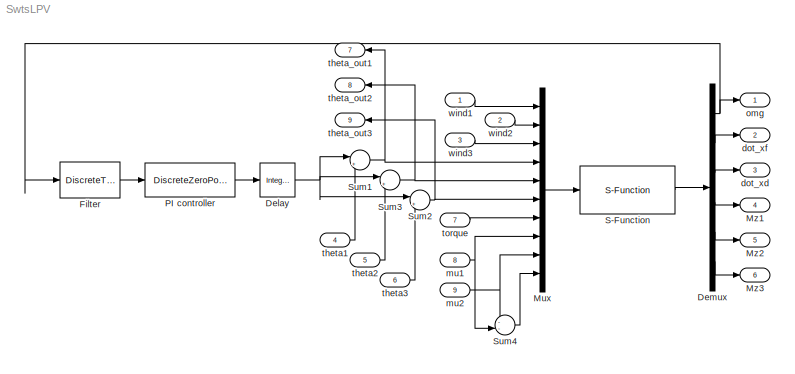
MODEL SwtsLPV
KIND model
BLOCK [Reference] Delay  REF=simulink/Discrete/Integer Delay
  NumDelays = 1
  Ports = [1, 1]
  SID = 10
  SourceBlock = simulink/Discrete/Integer Delay
  SourceType = Integer Delay
  samptime = h
  vinit = 0.0
BLOCK [Demux] Demux
  DisplayOption = bar
  Outputs = 6
  Ports = [1, 6]
  SID = 11
BLOCK [DiscreteTransferFcn] Filter
  Denominator = [1.0000   -3.2569    4.2388   -2.5704    0.6176]
  Numerator = [0.1840   -0.5760    0.8115   -0.5760    0.1840]
  Ports = [1, 1]
  SID = 12
  SampleTime = 0.1
BLOCK [Mux] Mux
  DisplayOption = bar
  Inputs = 10
  Ports = [10, 1]
  SID = 13
BLOCK [Outport] Mz1
  IconDisplay = Port number
  OutDataType = sfix(16)
  OutScaling = 2^0
  Port = 4
  SID = 23
  SampleTime = h
  SamplingMode = Sample based
  SignalType = real
BLOCK [Outport] Mz2
  IconDisplay = Port number
  OutDataType = sfix(16)
  OutScaling = 2^0
  Port = 5
  SID = 24
  SampleTime = h
  SamplingMode = Sample based
  SignalType = real
BLOCK [Outport] Mz3
  IconDisplay = Port number
  OutDataType = sfix(16)
  OutScaling = 2^0
  Port = 6
  SID = 25
  SampleTime = h
  SamplingMode = Sample based
  SignalType = real
BLOCK [DiscreteZeroPole] PI controller
  Gain = 46.9335
  Poles = [1]
  SID = 14
  SampleTime = h
  Zeros = [0.99]
BLOCK [S-Function] S-Function
  EnableBusSupport = off
  FunctionName = SfunctionLPV
  Parameters = M.a,M.b,M.c,M.d
  Ports = [1, 1]
  SID = 15
BLOCK [Sum] Sum1
  IconShape = round
  InputSameDT = off
  Inputs = |++
  OutDataType = sfix(16)
  OutDataTypeMode = Inherit via internal rule
  OutDataTypeStr = Inherit: Inherit via internal rule
  OutScaling = 2^0
  Ports = [2, 1]
  SID = 16
  SaturateOnIntegerOverflow = off
BLOCK [Sum] Sum2
  IconShape = round
  InputSameDT = off
  Inputs = |++
  OutDataType = sfix(16)
  OutDataTypeMode = Inherit via internal rule
  OutDataTypeStr = Inherit: Inherit via internal rule
  OutScaling = 2^0
  Ports = [2, 1]
  SID = 17
  SaturateOnIntegerOverflow = off
BLOCK [Sum] Sum3
  IconShape = round
  InputSameDT = off
  Inputs = |++
  OutDataType = sfix(16)
  OutDataTypeMode = Inherit via internal rule
  OutDataTypeStr = Inherit: Inherit via internal rule
  OutScaling = 2^0
  Ports = [2, 1]
  SID = 18
  SaturateOnIntegerOverflow = off
BLOCK [Sum] Sum4
  IconShape = round
  InputSameDT = off
  Inputs = --|
  OutDataType = sfix(16)
  OutDataTypeMode = Inherit via internal rule
  OutDataTypeStr = Inherit: Inherit via internal rule
  OutScaling = 2^0
  Ports = [2, 1]
  SID = 19
  SaturateOnIntegerOverflow = off
BLOCK [Outport] dot_xd
  IconDisplay = Port number
  OutDataType = sfix(16)
  OutScaling = 2^0
  Port = 3
  SID = 22
  SampleTime = h
  SamplingMode = Sample based
  SignalType = real
BLOCK [Outport] dot_xf
  IconDisplay = Port number
  OutDataType = sfix(16)
  OutScaling = 2^0
  Port = 2
  SID = 21
  SampleTime = h
  SamplingMode = Sample based
  SignalType = real
BLOCK [Inport] mu1
  IconDisplay = Port number
  OutDataType = sfix(16)
  OutScaling = 2^0
  Port = 8
  SID = 8
BLOCK [Inport] mu2
  IconDisplay = Port number
  OutDataType = sfix(16)
  OutScaling = 2^0
  Port = 9
  SID = 9
BLOCK [Outport] omg
  IconDisplay = Port number
  OutDataType = sfix(16)
  OutScaling = 2^0
  SID = 20
  SampleTime = h
  SamplingMode = Sample based
  SignalType = real
BLOCK [Inport] theta1
  IconDisplay = Port number
  OutDataType = sfix(16)
  OutScaling = 2^0
  Port = 4
  SID = 4
BLOCK [Inport] theta2
  IconDisplay = Port number
  OutDataType = sfix(16)
  OutScaling = 2^0
  Port = 5
  SID = 5
BLOCK [Inport] theta3
  IconDisplay = Port number
  OutDataType = sfix(16)
  OutScaling = 2^0
  Port = 6
  SID = 6
BLOCK [Outport] theta_out1
  IconDisplay = Port number
  OutDataType = sfix(16)
  OutScaling = 2^0
  Port = 7
  SID = 26
  SampleTime = h
  SamplingMode = Sample based
  SignalType = real
BLOCK [Outport] theta_out2
  IconDisplay = Port number
  OutDataType = sfix(16)
  OutScaling = 2^0
  Port = 8
  SID = 27
  SampleTime = h
  SamplingMode = Sample based
  SignalType = real
BLOCK [Outport] theta_out3
  IconDisplay = Port number
  OutDataType = sfix(16)
  OutScaling = 2^0
  Port = 9
  SID = 28
  SampleTime = h
  SamplingMode = Sample based
  SignalType = real
BLOCK [Inport] torque
  IconDisplay = Port number
  OutDataType = sfix(16)
  OutScaling = 2^0
  Port = 7
  SID = 7
BLOCK [Inport] wind1
  IconDisplay = Port number
  OutDataType = sfix(16)
  OutScaling = 2^0
  SID = 1
BLOCK [Inport] wind2
  IconDisplay = Port number
  OutDataType = sfix(16)
  OutScaling = 2^0
  Port = 2
  SID = 2
BLOCK [Inport] wind3
  IconDisplay = Port number
  OutDataType = sfix(16)
  OutScaling = 2^0
  Port = 3
  SID = 3
NET Delay:1 -> Sum1:1, Sum2:1, Sum3:1
NET Demux:1 -> Filter:1, omg:1
LINE Demux:2 -> dot_xf:1
LINE Demux:3 -> dot_xd:1
LINE Demux:4 -> Mz1:1
LINE Demux:5 -> Mz2:1
LINE Demux:6 -> Mz3:1
LINE Filter:1 -> PI controller:1
LINE Mux:1 -> S-Function:1
LINE PI controller:1 -> Delay:1
LINE S-Function:1 -> Demux:1
NET Sum1:1 -> Mux:4, theta_out1:1
NET Sum2:1 -> Mux:6, theta_out3:1
NET Sum3:1 -> Mux:5, theta_out2:1
LINE Sum4:1 -> Mux:10
NET mu1:1 -> Mux:8, Sum4:2
NET mu2:1 -> Mux:9, Sum4:1
LINE theta1:1 -> Sum1:2
LINE theta2:1 -> Sum3:2
LINE theta3:1 -> Sum2:2
LINE torque:1 -> Mux:7
LINE wind1:1 -> Mux:1
LINE wind2:1 -> Mux:2
LINE wind3:1 -> Mux:3
note: NET lines group one-source signal fan-out (src -> all destinations, sorted); 1:1 wires keep LINE
